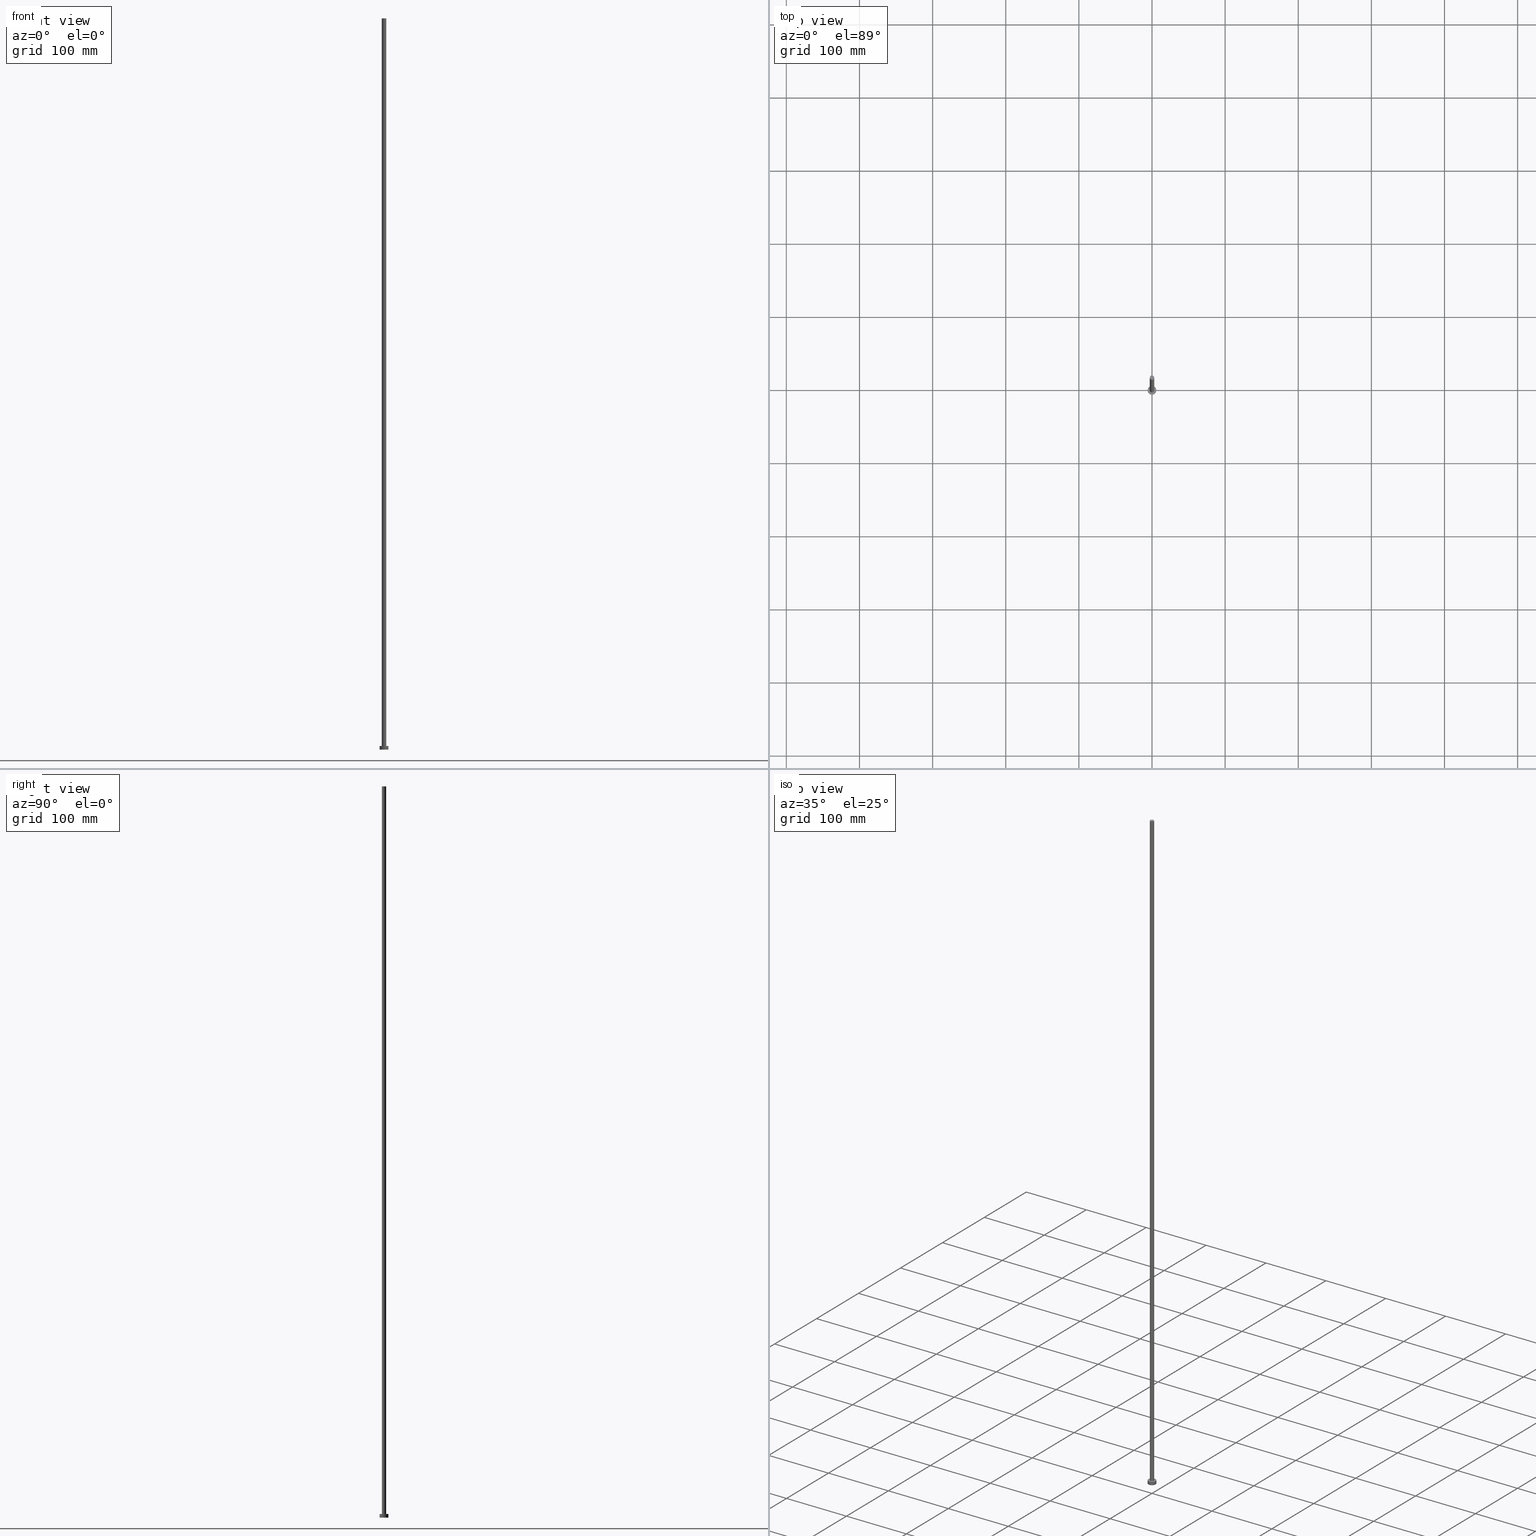
[diagram: canonical four-view strip — front | top / right | iso, engineering-drawing reading convention]
A machine part, canonical four-view strip (front | top / right | iso — engineering-drawing reading convention). The complete STEP part file that produces these views, byte-faithful:
ISO-10303-21;
HEADER;
FILE_DESCRIPTION (( 'STEP AP203' ),
    '1' );
FILE_NAME ('3647.STEP',
    '2023-02-13T15:43:36',
    ( '' ),
    ( '' ),
    'SwSTEP 2.0',
    'SolidWorks 2019',
    '' );
FILE_SCHEMA (( 'CONFIG_CONTROL_DESIGN' ));
ENDSEC;

DATA;
#1 = SECURITY_CLASSIFICATION_LEVEL ( 'unclassified' ) ;
#2 = PERSON_AND_ORGANIZATION_ROLE ( 'design_supplier' ) ;
#3 = AXIS2_PLACEMENT_3D ( 'NONE', #210, #47, #182 ) ;
#4 = DIRECTION ( 'NONE',  ( 0.000000000000000000, 0.000000000000000000, 1.000000000000000000 ) ) ;
#5 = CC_DESIGN_DATE_AND_TIME_ASSIGNMENT ( #82, #148, ( #219 ) ) ;
#6 = DIRECTION ( 'NONE',  ( 1.000000000000000000, 0.000000000000000000, 0.000000000000000000 ) ) ;
#7 = DIRECTION ( 'NONE',  ( 0.000000000000000000, 0.000000000000000000, 1.000000000000000000 ) ) ;
#8 = CIRCLE ( 'NONE', #92, 3.000000000000000444 ) ;
#9 = ORIENTED_EDGE ( 'NONE', *, *, #117, .T. ) ;
#10 = DIRECTION ( 'NONE',  ( 1.000000000000000000, 0.000000000000000000, 0.000000000000000000 ) ) ;
#11 = ORIENTED_EDGE ( 'NONE', *, *, #237, .T. ) ;
#12 = EDGE_CURVE ( 'NONE', #96, #157, #217, .T. ) ;
#13 = EDGE_LOOP ( 'NONE', ( #40, #62 ) ) ;
#14 = CYLINDRICAL_SURFACE ( 'NONE', #144, 6.000000000000000888 ) ;
#15 = VECTOR ( 'NONE', #59, 1000.000000000000000 ) ;
#16 = CARTESIAN_POINT ( 'NONE',  ( 0.000000000000000000, 0.000000000000000000, 0.000000000000000000 ) ) ;
#17 = CALENDAR_DATE ( 2023, 13, 2 ) ;
#18 = VERTEX_POINT ( 'NONE', #20 ) ;
#19 = CIRCLE ( 'NONE', #69, 3.000000000000000444 ) ;
#20 = CARTESIAN_POINT ( 'NONE',  ( -3.000000000000000444, 0.000000000000000000, 5.000000000000000000 ) ) ;
#21 = CC_DESIGN_PERSON_AND_ORGANIZATION_ASSIGNMENT ( #23, #2, ( #44 ) ) ;
#22 = LOCAL_TIME ( 16, 43, 36.00000000000000000, #77 ) ;
#23 = PERSON_AND_ORGANIZATION ( #184, #105 ) ;
#24 = PERSON_AND_ORGANIZATION ( #184, #105 ) ;
#25 = EDGE_CURVE ( 'NONE', #173, #164, #113, .T. ) ;
#26 = CARTESIAN_POINT ( 'NONE',  ( 0.000000000000000000, 0.000000000000000000, 0.000000000000000000 ) ) ;
#27 = CARTESIAN_POINT ( 'NONE',  ( 0.000000000000000000, 0.000000000000000000, 5.000000000000000000 ) ) ;
#28 = FACE_OUTER_BOUND ( 'NONE', #13, .T. ) ;
#29 = ORIENTED_EDGE ( 'NONE', *, *, #117, .F. ) ;
#30 =( NAMED_UNIT ( * ) PLANE_ANGLE_UNIT ( ) SI_UNIT ( $, .RADIAN. ) );
#31 = CIRCLE ( 'NONE', #97, 6.000000000000000888 ) ;
#32 = EDGE_LOOP ( 'NONE', ( #104, #232 ) ) ;
#33 = FACE_OUTER_BOUND ( 'NONE', #244, .T. ) ;
#34 =( GEOMETRIC_REPRESENTATION_CONTEXT ( 3 ) GLOBAL_UNCERTAINTY_ASSIGNED_CONTEXT ( ( #133 ) ) GLOBAL_UNIT_ASSIGNED_CONTEXT ( ( #205, #30, #137 ) ) REPRESENTATION_CONTEXT ( 'NONE', 'WORKASPACE' ) );
#35 = EDGE_LOOP ( 'NONE', ( #29, #75 ) ) ;
#36 = PERSON_AND_ORGANIZATION_ROLE ( 'creator' ) ;
#37 = ORIENTED_EDGE ( 'NONE', *, *, #25, .F. ) ;
#38 = PRODUCT_DEFINITION ( 'NEZN�M�', '', #44, #183 ) ;
#39 = DATE_AND_TIME ( #101, #22 ) ;
#40 = ORIENTED_EDGE ( 'NONE', *, *, #80, .F. ) ;
#41 = DIRECTION ( 'NONE',  ( -0.000000000000000000, -0.000000000000000000, -1.000000000000000000 ) ) ;
#42 = CARTESIAN_POINT ( 'NONE',  ( -6.000000000000000888, 0.000000000000000000, 5.000000000000000000 ) ) ;
#43 = DIRECTION ( 'NONE',  ( 0.000000000000000000, 0.000000000000000000, 1.000000000000000000 ) ) ;
#44 = PRODUCT_DEFINITION_FORMATION_WITH_SPECIFIED_SOURCE ( 'LIBOVOLN�', '', #50, .NOT_KNOWN. ) ;
#45 = CARTESIAN_POINT ( 'NONE',  ( 6.000000000000000888, 7.347880794884120722E-16, 5.000000000000000000 ) ) ;
#46 = ADVANCED_FACE ( 'NONE', ( #33 ), #14, .T. ) ;
#47 = DIRECTION ( 'NONE',  ( 0.000000000000000000, 0.000000000000000000, 1.000000000000000000 ) ) ;
#48 = AXIS2_PLACEMENT_3D ( 'NONE', #16, #185, #141 ) ;
#49 = DIRECTION ( 'NONE',  ( -0.000000000000000000, -0.000000000000000000, -1.000000000000000000 ) ) ;
#50 = PRODUCT ( '3647', '3647', '', ( #119 ) ) ;
#51 = VECTOR ( 'NONE', #249, 1000.000000000000000 ) ;
#52 = DIRECTION ( 'NONE',  ( 1.000000000000000000, 0.000000000000000000, 0.000000000000000000 ) ) ;
#53 = DIRECTION ( 'NONE',  ( -1.000000000000000000, 0.000000000000000000, 0.000000000000000000 ) ) ;
#54 = EDGE_CURVE ( 'NONE', #67, #56, #199, .T. ) ;
#55 = CC_DESIGN_SECURITY_CLASSIFICATION ( #219, ( #44 ) ) ;
#56 = VERTEX_POINT ( 'NONE', #116 ) ;
#57 = ORIENTED_EDGE ( 'NONE', *, *, #163, .T. ) ;
#58 = DATE_AND_TIME ( #147, #115 ) ;
#59 = DIRECTION ( 'NONE',  ( -0.000000000000000000, -0.000000000000000000, -1.000000000000000000 ) ) ;
#60 = EDGE_LOOP ( 'NONE', ( #83, #71, #11, #9 ) ) ;
#61 = LINE ( 'NONE', #161, #121 ) ;
#62 = ORIENTED_EDGE ( 'NONE', *, *, #12, .F. ) ;
#63 = CARTESIAN_POINT ( 'NONE',  ( 0.000000000000000000, 0.000000000000000000, 5.000000000000000000 ) ) ;
#64 = EDGE_LOOP ( 'NONE', ( #255, #118, #203, #158 ) ) ;
#65 = CYLINDRICAL_SURFACE ( 'NONE', #225, 3.000000000000000444 ) ;
#66 = CARTESIAN_POINT ( 'NONE',  ( -6.000000000000000888, 0.000000000000000000, 0.000000000000000000 ) ) ;
#67 = VERTEX_POINT ( 'NONE', #129 ) ;
#68 = CARTESIAN_POINT ( 'NONE',  ( 0.000000000000000000, 0.000000000000000000, 0.000000000000000000 ) ) ;
#69 = AXIS2_PLACEMENT_3D ( 'NONE', #142, #175, #6 ) ;
#70 = DIRECTION ( 'NONE',  ( 0.000000000000000000, 0.000000000000000000, 1.000000000000000000 ) ) ;
#71 = ORIENTED_EDGE ( 'NONE', *, *, #54, .F. ) ;
#72 = AXIS2_PLACEMENT_3D ( 'NONE', #174, #43, #139 ) ;
#73 = AXIS2_PLACEMENT_3D ( 'NONE', #196, #197, #128 ) ;
#74 = DATE_TIME_ROLE ( 'creation_date' ) ;
#75 = ORIENTED_EDGE ( 'NONE', *, *, #200, .F. ) ;
#76 = PERSON_AND_ORGANIZATION ( #184, #105 ) ;
#77 = COORDINATED_UNIVERSAL_TIME_OFFSET ( 1, 0, .AHEAD. ) ;
#78 = APPROVAL_PERSON_ORGANIZATION ( #24, #233, #208 ) ;
#79 = APPROVAL_DATE_TIME ( #39, #95 ) ;
#80 = EDGE_CURVE ( 'NONE', #157, #96, #31, .T. ) ;
#81 = APPROVAL_ROLE ( '' ) ;
#82 = DATE_AND_TIME ( #122, #100 ) ;
#83 = ORIENTED_EDGE ( 'NONE', *, *, #230, .F. ) ;
#84 = DIRECTION ( 'NONE',  ( -1.000000000000000000, 0.000000000000000000, 0.000000000000000000 ) ) ;
#85 = LINE ( 'NONE', #239, #15 ) ;
#86 = CARTESIAN_POINT ( 'NONE',  ( 3.000000000000000444, 3.673940397442059868E-16, 1000.000000000000000 ) ) ;
#87 = CC_DESIGN_APPROVAL ( #233, ( #44 ) ) ;
#88 = FACE_BOUND ( 'NONE', #35, .T. ) ;
#89 = DIRECTION ( 'NONE',  ( 0.000000000000000000, 0.000000000000000000, 1.000000000000000000 ) ) ;
#90 = AXIS2_PLACEMENT_3D ( 'NONE', #218, #70, #143 ) ;
#91 = CARTESIAN_POINT ( 'NONE',  ( 0.000000000000000000, 0.000000000000000000, 5.000000000000000000 ) ) ;
#92 = AXIS2_PLACEMENT_3D ( 'NONE', #108, #89, #153 ) ;
#93 = ADVANCED_BREP_SHAPE_REPRESENTATION ( '3647', ( #102, #195 ), #34 ) ;
#94 = CIRCLE ( 'NONE', #235, 3.000000000000000444 ) ;
#95 = APPROVAL ( #188, 'NEUR�EN�' ) ;
#96 = VERTEX_POINT ( 'NONE', #111 ) ;
#97 = AXIS2_PLACEMENT_3D ( 'NONE', #26, #245, #134 ) ;
#98 = DIRECTION ( 'NONE',  ( 0.000000000000000000, 0.000000000000000000, 1.000000000000000000 ) ) ;
#99 = COORDINATED_UNIVERSAL_TIME_OFFSET ( 1, 0, .AHEAD. ) ;
#100 = LOCAL_TIME ( 16, 43, 36.00000000000000000, #168 ) ;
#101 = CALENDAR_DATE ( 2023, 13, 2 ) ;
#102 = MANIFOLD_SOLID_BREP ( 'P�idat vysunut�m3', #236 ) ;
#103 = APPROVAL_DATE_TIME ( #227, #233 ) ;
#104 = ORIENTED_EDGE ( 'NONE', *, *, #54, .T. ) ;
#105 = ORGANIZATION ( 'NEUR�EN�', 'NEUR�EN�', '' ) ;
#106 = LINE ( 'NONE', #86, #51 ) ;
#107 = DIRECTION ( 'NONE',  ( 1.000000000000000000, 0.000000000000000000, -0.000000000000000000 ) ) ;
#108 = CARTESIAN_POINT ( 'NONE',  ( 0.000000000000000000, 0.000000000000000000, 1000.000000000000000 ) ) ;
#109 = ADVANCED_FACE ( 'NONE', ( #180 ), #234, .T. ) ;
#110 = LOCAL_TIME ( 16, 43, 36.00000000000000000, #124 ) ;
#111 = CARTESIAN_POINT ( 'NONE',  ( 6.000000000000000888, 7.347880794884120722E-16, 0.000000000000000000 ) ) ;
#112 = FACE_OUTER_BOUND ( 'NONE', #32, .T. ) ;
#113 = CIRCLE ( 'NONE', #90, 6.000000000000000888 ) ;
#114 = DIRECTION ( 'NONE',  ( -0.000000000000000000, -0.000000000000000000, -1.000000000000000000 ) ) ;
#115 = LOCAL_TIME ( 16, 43, 36.00000000000000000, #99 ) ;
#116 = CARTESIAN_POINT ( 'NONE',  ( 3.000000000000000444, 3.673940397442059868E-16, 1000.000000000000000 ) ) ;
#117 = EDGE_CURVE ( 'NONE', #18, #191, #19, .T. ) ;
#118 = ORIENTED_EDGE ( 'NONE', *, *, #230, .T. ) ;
#119 = MECHANICAL_CONTEXT ( 'NONE', #178, 'mechanical' ) ;
#120 = APPROVAL ( #126, 'NEUR�EN�' ) ;
#121 = VECTOR ( 'NONE', #41, 1000.000000000000000 ) ;
#122 = CALENDAR_DATE ( 2023, 13, 2 ) ;
#123 = PERSON_AND_ORGANIZATION ( #184, #105 ) ;
#124 = COORDINATED_UNIVERSAL_TIME_OFFSET ( 1, 0, .AHEAD. ) ;
#125 = DATE_AND_TIME ( #17, #146 ) ;
#126 = APPROVAL_STATUS ( 'not_yet_approved' ) ;
#127 = DIRECTION ( 'NONE',  ( -0.000000000000000000, -0.000000000000000000, -1.000000000000000000 ) ) ;
#128 = DIRECTION ( 'NONE',  ( 1.000000000000000000, 0.000000000000000000, -0.000000000000000000 ) ) ;
#129 = CARTESIAN_POINT ( 'NONE',  ( -3.000000000000000444, 0.000000000000000000, 1000.000000000000000 ) ) ;
#130 = FACE_OUTER_BOUND ( 'NONE', #135, .T. ) ;
#131 = ADVANCED_FACE ( 'NONE', ( #130 ), #194, .T. ) ;
#132 = CARTESIAN_POINT ( 'NONE',  ( 0.000000000000000000, 0.000000000000000000, 5.000000000000000000 ) ) ;
#133 = UNCERTAINTY_MEASURE_WITH_UNIT (LENGTH_MEASURE( 1.000000000000000082E-05 ), #205, 'distance_accuracy_value', 'NONE');
#134 = DIRECTION ( 'NONE',  ( 1.000000000000000000, 0.000000000000000000, 0.000000000000000000 ) ) ;
#135 = EDGE_LOOP ( 'NONE', ( #166, #154, #238, #187 ) ) ;
#136 = CARTESIAN_POINT ( 'NONE',  ( 0.000000000000000000, 0.000000000000000000, 1000.000000000000000 ) ) ;
#137 =( NAMED_UNIT ( * ) SI_UNIT ( $, .STERADIAN. ) SOLID_ANGLE_UNIT ( ) );
#138 = AXIS2_PLACEMENT_3D ( 'NONE', #136, #114, #53 ) ;
#139 = DIRECTION ( 'NONE',  ( 1.000000000000000000, 0.000000000000000000, 0.000000000000000000 ) ) ;
#140 = CC_DESIGN_PERSON_AND_ORGANIZATION_ASSIGNMENT ( #169, #192, ( #219 ) ) ;
#141 = DIRECTION ( 'NONE',  ( 1.000000000000000000, 0.000000000000000000, 0.000000000000000000 ) ) ;
#142 = CARTESIAN_POINT ( 'NONE',  ( 0.000000000000000000, 0.000000000000000000, 5.000000000000000000 ) ) ;
#143 = DIRECTION ( 'NONE',  ( 1.000000000000000000, 0.000000000000000000, 0.000000000000000000 ) ) ;
#144 = AXIS2_PLACEMENT_3D ( 'NONE', #91, #159, #229 ) ;
#145 = APPLICATION_PROTOCOL_DEFINITION ( 'international standard', 'config_control_design', 1994, #162 ) ;
#146 = LOCAL_TIME ( 16, 43, 36.00000000000000000, #193 ) ;
#147 = CALENDAR_DATE ( 2023, 13, 2 ) ;
#148 = DATE_TIME_ROLE ( 'classification_date' ) ;
#149 = APPROVAL_DATE_TIME ( #58, #120 ) ;
#150 = APPROVAL_STATUS ( 'not_yet_approved' ) ;
#151 = CC_DESIGN_DATE_AND_TIME_ASSIGNMENT ( #125, #74, ( #38 ) ) ;
#152 = PLANE ( 'NONE',  #221 ) ;
#153 = DIRECTION ( 'NONE',  ( 1.000000000000000000, 0.000000000000000000, 0.000000000000000000 ) ) ;
#154 = ORIENTED_EDGE ( 'NONE', *, *, #202, .T. ) ;
#155 = DIRECTION ( 'NONE',  ( -1.000000000000000000, 0.000000000000000000, 0.000000000000000000 ) ) ;
#156 = CC_DESIGN_PERSON_AND_ORGANIZATION_ASSIGNMENT ( #76, #165, ( #50 ) ) ;
#157 = VERTEX_POINT ( 'NONE', #66 ) ;
#158 = ORIENTED_EDGE ( 'NONE', *, *, #237, .F. ) ;
#159 = DIRECTION ( 'NONE',  ( -0.000000000000000000, -0.000000000000000000, -1.000000000000000000 ) ) ;
#160 = CARTESIAN_POINT ( 'NONE',  ( 0.000000000000000000, 0.000000000000000000, 1000.000000000000000 ) ) ;
#161 = CARTESIAN_POINT ( 'NONE',  ( -3.000000000000000444, 0.000000000000000000, 1000.000000000000000 ) ) ;
#162 = APPLICATION_CONTEXT ( 'configuration controlled 3d designs of mechanical parts and assemblies' ) ;
#163 = EDGE_CURVE ( 'NONE', #173, #157, #241, .T. ) ;
#164 = VERTEX_POINT ( 'NONE', #45 ) ;
#165 = PERSON_AND_ORGANIZATION_ROLE ( 'design_owner' ) ;
#166 = ORIENTED_EDGE ( 'NONE', *, *, #252, .F. ) ;
#167 = CC_DESIGN_APPROVAL ( #120, ( #38 ) ) ;
#168 = COORDINATED_UNIVERSAL_TIME_OFFSET ( 1, 0, .AHEAD. ) ;
#169 = PERSON_AND_ORGANIZATION ( #184, #105 ) ;
#170 = SHAPE_DEFINITION_REPRESENTATION ( #198, #93 ) ;
#171 = ADVANCED_FACE ( 'NONE', ( #88, #211 ), #152, .T. ) ;
#172 = DIRECTION ( 'NONE',  ( -0.000000000000000000, -0.000000000000000000, -1.000000000000000000 ) ) ;
#173 = VERTEX_POINT ( 'NONE', #177 ) ;
#174 = CARTESIAN_POINT ( 'NONE',  ( 0.000000000000000000, 0.000000000000000000, 1000.000000000000000 ) ) ;
#175 = DIRECTION ( 'NONE',  ( 0.000000000000000000, 0.000000000000000000, 1.000000000000000000 ) ) ;
#176 = CC_DESIGN_APPROVAL ( #95, ( #219 ) ) ;
#177 = CARTESIAN_POINT ( 'NONE',  ( -6.000000000000000888, 0.000000000000000000, 5.000000000000000000 ) ) ;
#178 = APPLICATION_CONTEXT ( 'configuration controlled 3d designs of mechanical parts and assemblies' ) ;
#179 = CARTESIAN_POINT ( 'NONE',  ( 0.000000000000000000, 0.000000000000000000, 0.000000000000000000 ) ) ;
#180 = FACE_OUTER_BOUND ( 'NONE', #60, .T. ) ;
#181 = ADVANCED_FACE ( 'NONE', ( #112 ), #214, .T. ) ;
#182 = DIRECTION ( 'NONE',  ( 1.000000000000000000, 0.000000000000000000, 0.000000000000000000 ) ) ;
#183 = DESIGN_CONTEXT ( 'detailed design', #162, 'design' ) ;
#184 = PERSON ( 'NEUR�EN�', 'NEUR�EN�', 'NEUR�EN�', ('NEUR�EN�'), ('NEUR�EN�'), ('NEUR�EN�') ) ;
#185 = DIRECTION ( 'NONE',  ( 0.000000000000000000, 0.000000000000000000, 1.000000000000000000 ) ) ;
#186 = APPROVAL_ROLE ( '' ) ;
#187 = ORIENTED_EDGE ( 'NONE', *, *, #163, .F. ) ;
#188 = APPROVAL_STATUS ( 'not_yet_approved' ) ;
#189 = CC_DESIGN_PERSON_AND_ORGANIZATION_ASSIGNMENT ( #206, #36, ( #44 ) ) ;
#190 = APPLICATION_PROTOCOL_DEFINITION ( 'international standard', 'config_control_design', 1994, #178 ) ;
#191 = VERTEX_POINT ( 'NONE', #212 ) ;
#192 = PERSON_AND_ORGANIZATION_ROLE ( 'classification_officer' ) ;
#193 = COORDINATED_UNIVERSAL_TIME_OFFSET ( 1, 0, .AHEAD. ) ;
#194 = CYLINDRICAL_SURFACE ( 'NONE', #248, 6.000000000000000888 ) ;
#195 = AXIS2_PLACEMENT_3D ( 'NONE', #68, #98, #52 ) ;
#196 = CARTESIAN_POINT ( 'NONE',  ( 0.000000000000000000, 0.000000000000000000, 1000.000000000000000 ) ) ;
#197 = DIRECTION ( 'NONE',  ( 0.000000000000000000, 0.000000000000000000, 1.000000000000000000 ) ) ;
#198 = PRODUCT_DEFINITION_SHAPE ( 'NONE', 'NONE',  #38 ) ;
#199 = CIRCLE ( 'NONE', #72, 3.000000000000000444 ) ;
#200 = EDGE_CURVE ( 'NONE', #191, #18, #94, .T. ) ;
#201 = EDGE_LOOP ( 'NONE', ( #215, #220 ) ) ;
#202 = EDGE_CURVE ( 'NONE', #164, #96, #85, .T. ) ;
#203 = ORIENTED_EDGE ( 'NONE', *, *, #200, .T. ) ;
#204 = CIRCLE ( 'NONE', #3, 6.000000000000000888 ) ;
#205 =( LENGTH_UNIT ( ) NAMED_UNIT ( * ) SI_UNIT ( .MILLI., .METRE. ) );
#206 = PERSON_AND_ORGANIZATION ( #184, #105 ) ;
#207 = ADVANCED_FACE ( 'NONE', ( #28 ), #231, .F. ) ;
#208 = APPROVAL_ROLE ( '' ) ;
#209 = ORIENTED_EDGE ( 'NONE', *, *, #80, .T. ) ;
#210 = CARTESIAN_POINT ( 'NONE',  ( 0.000000000000000000, 0.000000000000000000, 5.000000000000000000 ) ) ;
#211 = FACE_OUTER_BOUND ( 'NONE', #201, .T. ) ;
#212 = CARTESIAN_POINT ( 'NONE',  ( 3.000000000000000444, 3.673940397442059868E-16, 5.000000000000000000 ) ) ;
#213 = VECTOR ( 'NONE', #172, 1000.000000000000000 ) ;
#214 = PLANE ( 'NONE',  #73 ) ;
#215 = ORIENTED_EDGE ( 'NONE', *, *, #25, .T. ) ;
#216 = PRODUCT_RELATED_PRODUCT_CATEGORY ( 'detail', '', ( #50 ) ) ;
#217 = CIRCLE ( 'NONE', #48, 6.000000000000000888 ) ;
#218 = CARTESIAN_POINT ( 'NONE',  ( 0.000000000000000000, 0.000000000000000000, 5.000000000000000000 ) ) ;
#219 = SECURITY_CLASSIFICATION ( '', '', #1 ) ;
#220 = ORIENTED_EDGE ( 'NONE', *, *, #252, .T. ) ;
#221 = AXIS2_PLACEMENT_3D ( 'NONE', #132, #7, #246 ) ;
#222 = EDGE_CURVE ( 'NONE', #56, #67, #8, .T. ) ;
#223 = CALENDAR_DATE ( 2023, 13, 2 ) ;
#224 = PERSON_AND_ORGANIZATION ( #184, #105 ) ;
#225 = AXIS2_PLACEMENT_3D ( 'NONE', #160, #127, #155 ) ;
#226 = PERSON_AND_ORGANIZATION ( #184, #105 ) ;
#227 = DATE_AND_TIME ( #223, #110 ) ;
#228 = DIRECTION ( 'NONE',  ( 0.000000000000000000, 0.000000000000000000, 1.000000000000000000 ) ) ;
#229 = DIRECTION ( 'NONE',  ( -1.000000000000000000, 0.000000000000000000, 0.000000000000000000 ) ) ;
#230 = EDGE_CURVE ( 'NONE', #56, #191, #106, .T. ) ;
#231 = PLANE ( 'NONE',  #253 ) ;
#232 = ORIENTED_EDGE ( 'NONE', *, *, #222, .T. ) ;
#233 = APPROVAL ( #150, 'NEUR�EN�' ) ;
#234 = CYLINDRICAL_SURFACE ( 'NONE', #138, 3.000000000000000444 ) ;
#235 = AXIS2_PLACEMENT_3D ( 'NONE', #27, #4, #10 ) ;
#236 = CLOSED_SHELL ( 'NONE', ( #251, #131, #46, #171, #207, #109, #181 ) ) ;
#237 = EDGE_CURVE ( 'NONE', #67, #18, #61, .T. ) ;
#238 = ORIENTED_EDGE ( 'NONE', *, *, #12, .T. ) ;
#239 = CARTESIAN_POINT ( 'NONE',  ( 6.000000000000000888, 7.347880794884120722E-16, 5.000000000000000000 ) ) ;
#240 = CC_DESIGN_PERSON_AND_ORGANIZATION_ASSIGNMENT ( #123, #254, ( #38 ) ) ;
#241 = LINE ( 'NONE', #42, #213 ) ;
#242 = FACE_OUTER_BOUND ( 'NONE', #64, .T. ) ;
#243 = APPROVAL_PERSON_ORGANIZATION ( #226, #95, #186 ) ;
#244 = EDGE_LOOP ( 'NONE', ( #247, #37, #57, #209 ) ) ;
#245 = DIRECTION ( 'NONE',  ( 0.000000000000000000, 0.000000000000000000, 1.000000000000000000 ) ) ;
#246 = DIRECTION ( 'NONE',  ( 1.000000000000000000, 0.000000000000000000, -0.000000000000000000 ) ) ;
#247 = ORIENTED_EDGE ( 'NONE', *, *, #202, .F. ) ;
#248 = AXIS2_PLACEMENT_3D ( 'NONE', #63, #49, #84 ) ;
#249 = DIRECTION ( 'NONE',  ( -0.000000000000000000, -0.000000000000000000, -1.000000000000000000 ) ) ;
#250 = APPROVAL_PERSON_ORGANIZATION ( #224, #120, #81 ) ;
#251 = ADVANCED_FACE ( 'NONE', ( #242 ), #65, .T. ) ;
#252 = EDGE_CURVE ( 'NONE', #164, #173, #204, .T. ) ;
#253 = AXIS2_PLACEMENT_3D ( 'NONE', #179, #228, #107 ) ;
#254 = PERSON_AND_ORGANIZATION_ROLE ( 'creator' ) ;
#255 = ORIENTED_EDGE ( 'NONE', *, *, #222, .F. ) ;
ENDSEC;
END-ISO-10303-21;
